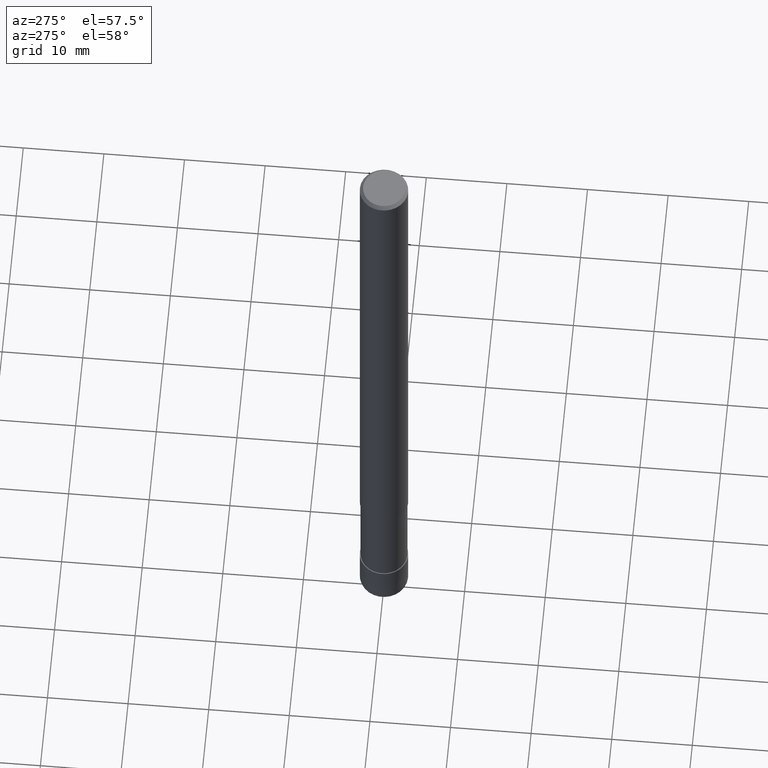
[diagram: clean part render]
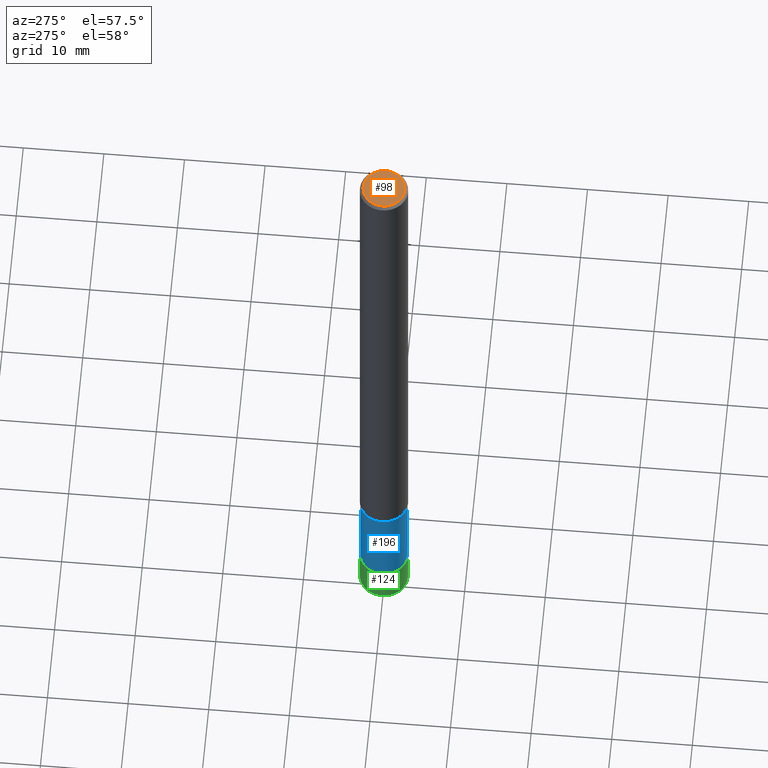
[diagram: same view with three faces highlighted in distinct colors, each labeled with its STEP entity id]
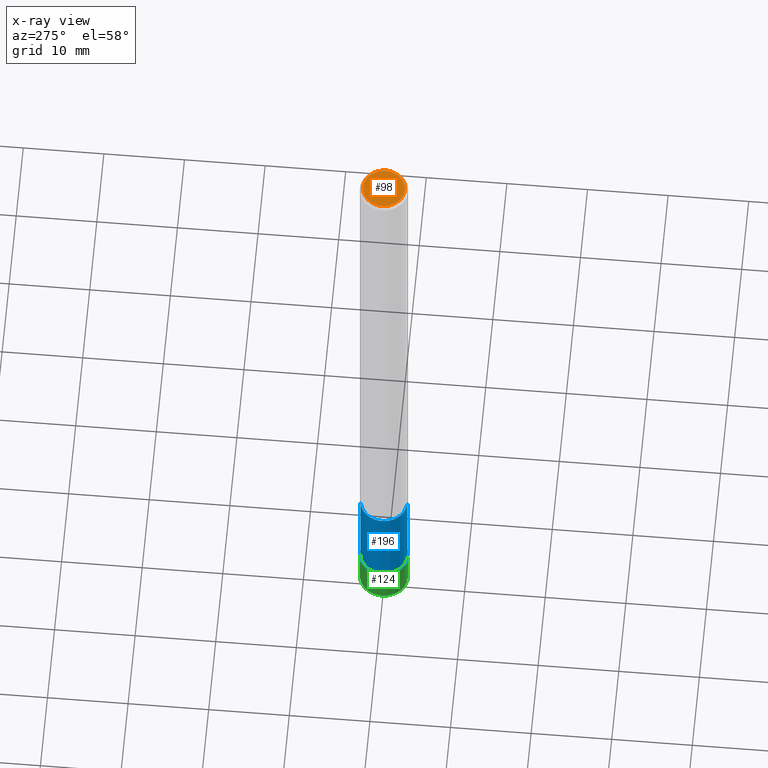
[diagram: x-ray of the same camera — body ghosted, the three highlighted faces saturated]
A machine part, auxiliary view with three faces highlighted in distinct colors.
The next image is the same camera in x-ray (body ghosted, the three faces saturated) — at least one of them is partly hidden behind the body in this view.
Their STEP definitions:

[orange] entity #98 — the highlighted planar face has unit normal (-0, 0, 1).
#98=ADVANCED_FACE('',(#235),#236,.T.);
#116=VERTEX_POINT('',#256);
#130=EDGE_CURVE('',#116,#198,#272,.T.);
#198=VERTEX_POINT('',#351);
#200=EDGE_CURVE('',#198,#116,#353,.T.);
#235=FACE_OUTER_BOUND('',#382,.T.);
#236=PLANE('',#383);
#256=CARTESIAN_POINT('',(3.18397651993818E-016,-2.6,0.0));
#272=CIRCLE('',#429,2.6);
#351=CARTESIAN_POINT('',(0.0,2.6,0.0));
#353=CIRCLE('',#525,2.6);
#382=EDGE_LOOP('',(#546,#547));
#383=AXIS2_PLACEMENT_3D('',#548,#549,#550);
#429=AXIS2_PLACEMENT_3D('',#593,#594,#595);
#525=AXIS2_PLACEMENT_3D('',#703,#704,#705);
#546=ORIENTED_EDGE('',*,*,#200,.F.);
#547=ORIENTED_EDGE('',*,*,#130,.F.);
#548=CARTESIAN_POINT('',(0.0,1.3,0.0));
#549=DIRECTION('',(-0.0,0.0,1.0));
#550=DIRECTION('',(0.0,-1.0,0.0));
#593=CARTESIAN_POINT('',(0.0,0.0,0.0));
#594=DIRECTION('',(0.0,0.0,-1.0));
#595=DIRECTION('',(0.0,1.0,0.0));
#703=CARTESIAN_POINT('',(0.0,0.0,0.0));
#704=DIRECTION('',(0.0,0.0,-1.0));
#705=DIRECTION('',(0.0,1.0,0.0));

[blue] entity #196 — the highlighted cylindrical surface (edge-blend (fillet) strip) has radius 2.9099 mm, axis along (-0, -0, 1).
#92=EDGE_CURVE('',#142,#110,#229,.T.);
#110=VERTEX_POINT('',#250);
#114=EDGE_CURVE('',#110,#120,#254,.T.);
#120=VERTEX_POINT('',#260);
#128=EDGE_CURVE('',#176,#142,#270,.T.);
#142=VERTEX_POINT('',#286);
#176=VERTEX_POINT('',#324);
#192=EDGE_CURVE('',#176,#120,#343,.T.);
#196=ADVANCED_FACE('',(#348),#349,.T.);
#229=CIRCLE('',#375,2.90995);
#250=CARTESIAN_POINT('',(0.0,2.90995,-72.0));
#254=LINE('',#406,#407);
#260=CARTESIAN_POINT('',(0.0,2.90995,-84.0));
#270=LINE('',#425,#426);
#286=CARTESIAN_POINT('',(3.56354325930543E-016,-2.90995,-72.0));
#324=CARTESIAN_POINT('',(3.56354325930543E-016,-2.90995,-84.0));
#343=CIRCLE('',#514,2.90995);
#348=FACE_OUTER_BOUND('',#519,.T.);
#349=CYLINDRICAL_SURFACE('',#520,2.90995);
#375=AXIS2_PLACEMENT_3D('',#540,#541,#542);
#406=CARTESIAN_POINT('',(-3.56354325930543E-016,2.90995,-78.0));
#407=VECTOR('',#574,1.0);
#425=CARTESIAN_POINT('',(3.56354325930543E-016,-2.90995,-78.0));
#426=VECTOR('',#592,1.0);
#514=AXIS2_PLACEMENT_3D('',#686,#687,#688);
#519=EDGE_LOOP('',(#696,#697,#698,#699));
#520=AXIS2_PLACEMENT_3D('',#700,#701,#702);
#540=CARTESIAN_POINT('',(0.0,0.0,-72.0));
#541=DIRECTION('',(0.0,0.0,-1.0));
#542=DIRECTION('',(0.0,1.0,0.0));
#574=DIRECTION('',(0.0,0.0,-1.0));
#592=DIRECTION('',(-0.0,-0.0,1.0));
#686=CARTESIAN_POINT('',(0.0,0.0,-84.0));
#687=DIRECTION('',(0.0,0.0,-1.0));
#688=DIRECTION('',(0.0,1.0,0.0));
#696=ORIENTED_EDGE('',*,*,#114,.T.);
#697=ORIENTED_EDGE('',*,*,#192,.F.);
#698=ORIENTED_EDGE('',*,*,#128,.T.);
#699=ORIENTED_EDGE('',*,*,#92,.T.);
#700=CARTESIAN_POINT('',(0.0,0.0,-78.0));
#701=DIRECTION('',(-0.0,-0.0,1.0));
#702=DIRECTION('',(0.0,1.0,0.0));

[green] entity #124 — the highlighted conical surface has half-angle 0.001 deg.
#96=EDGE_CURVE('',#136,#186,#233,.T.);
#102=EDGE_CURVE('',#118,#136,#241,.T.);
#118=VERTEX_POINT('',#258);
#124=ADVANCED_FACE('',(#264),#265,.T.);
#136=VERTEX_POINT('',#278);
#152=VERTEX_POINT('',#297);
#182=EDGE_CURVE('',#152,#186,#331,.T.);
#186=VERTEX_POINT('',#335);
#202=EDGE_CURVE('',#152,#118,#355,.T.);
#233=LINE('',#379,#380);
#241=CIRCLE('',#389,2.9999);
#258=CARTESIAN_POINT('',(3.67369660083175E-016,-2.9999,-84.0));
#264=FACE_OUTER_BOUND('',#418,.T.);
#265=CONICAL_SURFACE('',#419,2.99995,1.99999999973755E-005);
#278=CARTESIAN_POINT('',(0.0,2.9999,-84.0));
#297=CARTESIAN_POINT('',(3.67381906146713E-016,-3.0,-89.0));
#331=CIRCLE('',#500,3.0);
#335=CARTESIAN_POINT('',(0.0,3.0,-89.0));
#355=LINE('',#528,#529);
#379=CARTESIAN_POINT('',(-3.67375783114944E-016,2.99995,-86.5));
#380=VECTOR('',#544,1.0);
#389=AXIS2_PLACEMENT_3D('',#559,#560,#561);
#418=EDGE_LOOP('',(#579,#580,#581,#582));
#419=AXIS2_PLACEMENT_3D('',#583,#584,#585);
#500=AXIS2_PLACEMENT_3D('',#664,#665,#666);
#528=CARTESIAN_POINT('',(3.67375783114944E-016,-2.99995,-86.5));
#529=VECTOR('',#706,1.0);
#544=DIRECTION('',(-2.44921270716008E-021,1.99999999960422E-005,-0.9999999998));
#559=CARTESIAN_POINT('',(0.0,0.0,-84.0));
#560=DIRECTION('',(0.0,0.0,-1.0));
#561=DIRECTION('',(0.0,1.0,0.0));
#579=ORIENTED_EDGE('',*,*,#96,.T.);
#580=ORIENTED_EDGE('',*,*,#182,.F.);
#581=ORIENTED_EDGE('',*,*,#202,.T.);
#582=ORIENTED_EDGE('',*,*,#102,.T.);
#583=CARTESIAN_POINT('',(0.0,0.0,-86.5));
#584=DIRECTION('',(0.0,-0.0,-1.0));
#585=DIRECTION('',(0.0,1.0,0.0));
#664=CARTESIAN_POINT('',(0.0,0.0,-89.0));
#665=DIRECTION('',(0.0,0.0,-1.0));
#666=DIRECTION('',(0.0,1.0,0.0));
#706=DIRECTION('',(-2.44921270716008E-021,1.99999999960422E-005,0.9999999998));